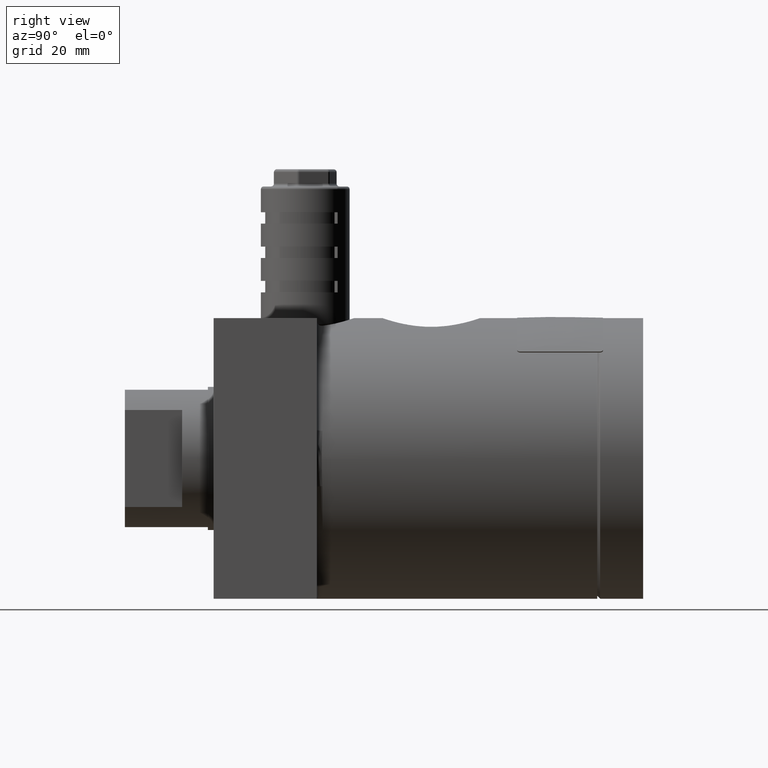
[diagram: clean part render]
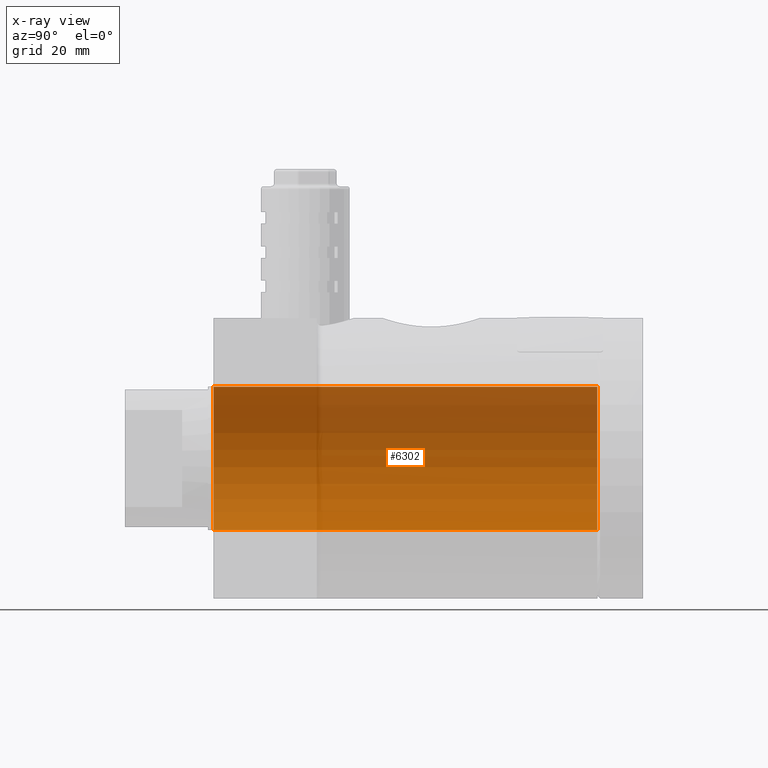
[diagram: x-ray — body ghosted, one internal face saturated and labeled with its STEP entity id]
A machine part, right view, then the same camera in x-ray: the body is ghosted and one INTERNAL B-rep face — a face not visible from any outside direction — is saturated and labeled: STEP entity #6302.
In plain terms, the highlighted cylindrical surface (partial cylindrical patch) has radius 12.5 mm, axis along (0, 1, 0).
Its self-contained STEP definition (entity closure, byte-faithful):
#744 = DIRECTION ( 'NONE',  ( 0.0000000000000000000, 1.000000000000000000, 0.0000000000000000000 ) ) ;
#747 = AXIS2_PLACEMENT_3D ( 'NONE', #3328, #744, #4173 ) ;
#1066 = DIRECTION ( 'NONE',  ( 0.0000000000000000000, 1.000000000000000000, 0.0000000000000000000 ) ) ;
#1322 = DIRECTION ( 'NONE',  ( 0.0000000000000000000, 0.0000000000000000000, 1.000000000000000000 ) ) ;
#1450 = VECTOR ( 'NONE', #1066, 1000.000000000000000 ) ;
#1903 = ORIENTED_EDGE ( 'NONE', *, *, #6092, .T. ) ;
#2079 = DIRECTION ( 'NONE',  ( 0.0000000000000000000, 1.000000000000000000, 0.0000000000000000000 ) ) ;
#2120 = LINE ( 'NONE', #5240, #1450 ) ;
#2348 = AXIS2_PLACEMENT_3D ( 'NONE', #4708, #9777, #1322 ) ;
#2373 = EDGE_LOOP ( 'NONE', ( #2739, #6893, #1903, #3472 ) ) ;
#2484 = CARTESIAN_POINT ( 'NONE',  ( 0.0000000000000000000, -0.001000000000000999900, 12.50000000000000000 ) ) ;
#2533 = CARTESIAN_POINT ( 'NONE',  ( 0.0000000000000000000, 67.00000000000000000, 12.50000000000000000 ) ) ;
#2731 = CARTESIAN_POINT ( 'NONE',  ( 1.530808498934191500E-015, 0.0000000000000000000, -12.50000000000000000 ) ) ;
#2739 = ORIENTED_EDGE ( 'NONE', *, *, #10496, .T. ) ;
#3328 = CARTESIAN_POINT ( 'NONE',  ( 0.0000000000000000000, -0.001000000000000999900, 0.0000000000000000000 ) ) ;
#3472 = ORIENTED_EDGE ( 'NONE', *, *, #9257, .F. ) ;
#4173 = DIRECTION ( 'NONE',  ( 0.0000000000000000000, 0.0000000000000000000, 1.000000000000000000 ) ) ;
#4708 = CARTESIAN_POINT ( 'NONE',  ( 0.0000000000000000000, 0.0000000000000000000, 0.0000000000000000000 ) ) ;
#5164 = VERTEX_POINT ( 'NONE', #2533 ) ;
#5236 = VERTEX_POINT ( 'NONE', #9677 ) ;
#5240 = CARTESIAN_POINT ( 'NONE',  ( 1.530808498934191500E-015, -0.001000000000000999900, -12.50000000000000000 ) ) ;
#5281 = CARTESIAN_POINT ( 'NONE',  ( 0.0000000000000000000, 0.0000000000000000000, 12.50000000000000000 ) ) ;
#5287 = EDGE_CURVE ( 'NONE', #7517, #5236, #2120, .T. ) ;
#5418 = CARTESIAN_POINT ( 'NONE',  ( 0.0000000000000000000, 67.00000000000000000, 0.0000000000000000000 ) ) ;
#5900 = VERTEX_POINT ( 'NONE', #5281 ) ;
#6092 = EDGE_CURVE ( 'NONE', #5236, #5164, #8142, .T. ) ;
#6302 = ADVANCED_FACE ( 'NONE', ( #8471 ), #9232, .F. ) ;
#6621 = AXIS2_PLACEMENT_3D ( 'NONE', #5418, #2079, #8793 ) ;
#6893 = ORIENTED_EDGE ( 'NONE', *, *, #5287, .T. ) ;
#7376 = DIRECTION ( 'NONE',  ( 0.0000000000000000000, 1.000000000000000000, 0.0000000000000000000 ) ) ;
#7517 = VERTEX_POINT ( 'NONE', #2731 ) ;
#7853 = LINE ( 'NONE', #2484, #8103 ) ;
#8103 = VECTOR ( 'NONE', #7376, 1000.000000000000000 ) ;
#8142 = CIRCLE ( 'NONE', #6621, 12.50000000000000000 ) ;
#8471 = FACE_OUTER_BOUND ( 'NONE', #2373, .T. ) ;
#8793 = DIRECTION ( 'NONE',  ( 0.0000000000000000000, 0.0000000000000000000, 1.000000000000000000 ) ) ;
#9232 = CYLINDRICAL_SURFACE ( 'NONE', #747, 12.50000000000000000 ) ;
#9257 = EDGE_CURVE ( 'NONE', #5900, #5164, #7853, .T. ) ;
#9644 = CIRCLE ( 'NONE', #2348, 12.50000000000000000 ) ;
#9677 = CARTESIAN_POINT ( 'NONE',  ( 1.530808498934191500E-015, 67.00000000000000000, -12.50000000000000000 ) ) ;
#9777 = DIRECTION ( 'NONE',  ( -0.0000000000000000000, -1.000000000000000000, -0.0000000000000000000 ) ) ;
#10496 = EDGE_CURVE ( 'NONE', #5900, #7517, #9644, .T. ) ;